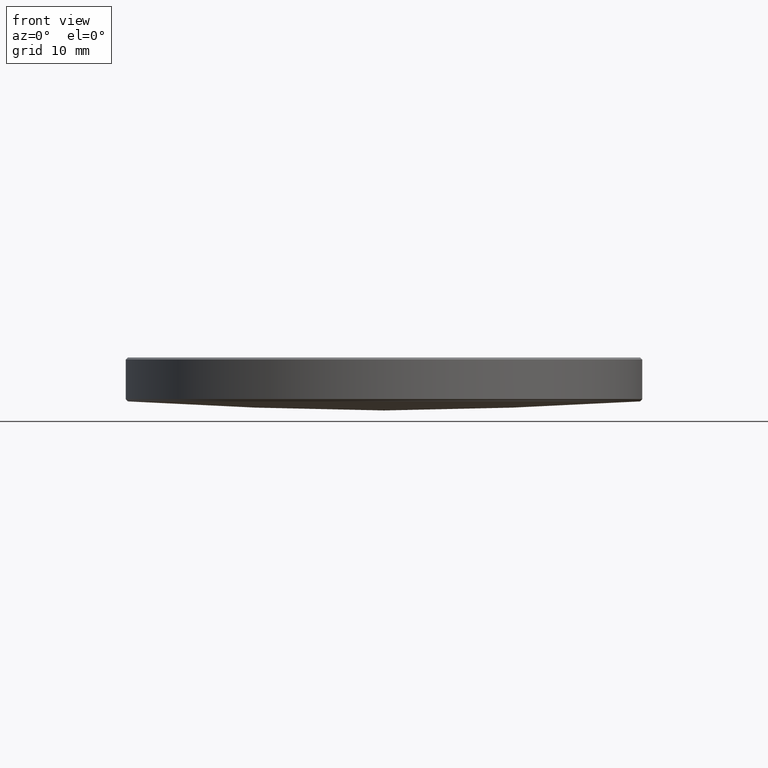
[diagram: clean part render]
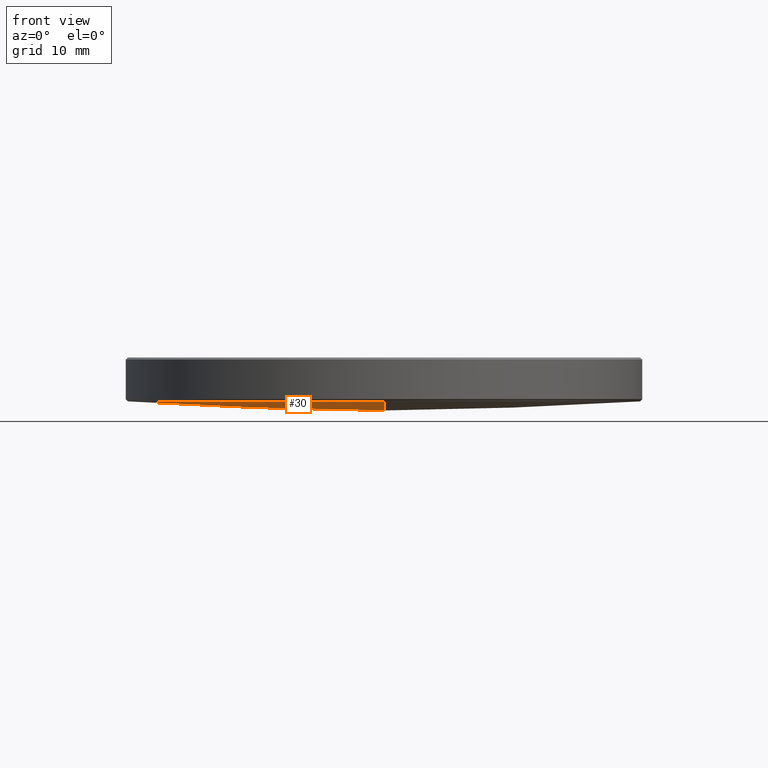
[diagram: same view with one face highlighted and labeled with its STEP entity id]
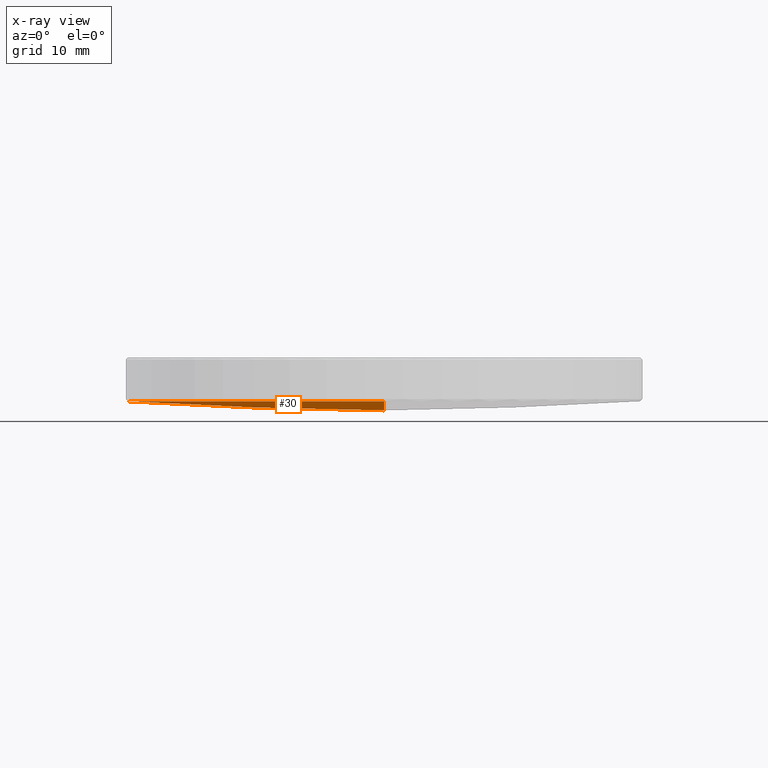
[diagram: x-ray of the same camera — body ghosted, the highlighted face saturated]
A machine part, front view. The second image highlights one B-rep face of the part: STEP entity #30.
The next image is the same camera in x-ray: the body ghosted, the highlighted face saturated — about 0% of this face is hidden behind the body in this view.
In plain terms, the highlighted spherical surface has radius 356.69 mm.
Its self-contained STEP definition (entity closure, byte-faithful):
#16 = EDGE_CURVE ( 'NONE', #221, #120, #324, .T. ) ;
#17 = ORIENTED_EDGE ( 'NONE', *, *, #188, .F. ) ;
#30 = ADVANCED_FACE ( 'NONE', ( #276 ), #244, .T. ) ;
#41 = VERTEX_POINT ( 'NONE', #202 ) ;
#45 = CARTESIAN_POINT ( 'NONE',  ( 0.000000000000000000, 0.000000000000000000, 12.98581782909002946 ) ) ;
#64 = ORIENTED_EDGE ( 'NONE', *, *, #16, .T. ) ;
#65 = AXIS2_PLACEMENT_3D ( 'NONE', #304, #271, #150 ) ;
#67 = ORIENTED_EDGE ( 'NONE', *, *, #295, .T. ) ;
#73 = DIRECTION ( 'NONE',  ( -1.000000000000000000, 1.224646799147353207E-16, 0.000000000000000000 ) ) ;
#93 = DIRECTION ( 'NONE',  ( 1.000000000000000000, 0.000000000000000000, 0.000000000000000000 ) ) ;
#104 = DIRECTION ( 'NONE',  ( 0.000000000000000000, 0.000000000000000000, -1.000000000000000000 ) ) ;
#112 = VERTEX_POINT ( 'NONE', #149 ) ;
#113 = DIRECTION ( 'NONE',  ( 0.000000000000000000, 0.000000000000000000, -1.000000000000000000 ) ) ;
#120 = VERTEX_POINT ( 'NONE', #301 ) ;
#136 = CIRCLE ( 'NONE', #310, 25.20055964190958520 ) ;
#145 = AXIS2_PLACEMENT_3D ( 'NONE', #45, #194, #296 ) ;
#146 = ORIENTED_EDGE ( 'NONE', *, *, #278, .T. ) ;
#149 = CARTESIAN_POINT ( 'NONE',  ( 0.000000000000000000, 25.20055964190926545, 12.98581782909005788 ) ) ;
#150 = DIRECTION ( 'NONE',  ( 0.000000000000000000, 1.000000000000000000, 0.000000000000000000 ) ) ;
#181 = AXIS2_PLACEMENT_3D ( 'NONE', #182, #73, #224 ) ;
#182 = CARTESIAN_POINT ( 'NONE',  ( 0.000000000000000000, 0.000000000000000000, 368.7844798469995453 ) ) ;
#183 = CARTESIAN_POINT ( 'NONE',  ( 0.000000000000000000, 0.000000000000000000, 368.7844798469995453 ) ) ;
#188 = EDGE_CURVE ( 'NONE', #221, #112, #253, .T. ) ;
#194 = DIRECTION ( 'NONE',  ( 0.000000000000000000, 0.000000000000000000, -1.000000000000000000 ) ) ;
#201 = CARTESIAN_POINT ( 'NONE',  ( 0.000000000000000000, 2.184096333939347168E-14, 12.09447984699951739 ) ) ;
#202 = CARTESIAN_POINT ( 'NONE',  ( -25.20055964190958520, 3.098390670026466009E-15, 12.98581782909002946 ) ) ;
#221 = VERTEX_POINT ( 'NONE', #201 ) ;
#224 = DIRECTION ( 'NONE',  ( -1.224646799147353207E-16, -1.000000000000000000, 0.000000000000000000 ) ) ;
#244 = SPHERICAL_SURFACE ( 'NONE', #65, 356.6899999999999977 ) ;
#245 = DIRECTION ( 'NONE',  ( 1.000000000000000000, -0.000000000000000000, 0.000000000000000000 ) ) ;
#253 = CIRCLE ( 'NONE', #275, 356.6899999999999977 ) ;
#257 = CIRCLE ( 'NONE', #145, 25.20055964190958520 ) ;
#271 = DIRECTION ( 'NONE',  ( -1.000000000000000000, 0.000000000000000000, 0.000000000000000000 ) ) ;
#275 = AXIS2_PLACEMENT_3D ( 'NONE', #183, #245, #104 ) ;
#276 = FACE_OUTER_BOUND ( 'NONE', #290, .T. ) ;
#278 = EDGE_CURVE ( 'NONE', #41, #112, #257, .T. ) ;
#290 = EDGE_LOOP ( 'NONE', ( #17, #64, #67, #146 ) ) ;
#295 = EDGE_CURVE ( 'NONE', #120, #41, #136, .T. ) ;
#296 = DIRECTION ( 'NONE',  ( 1.000000000000000000, 0.000000000000000000, 0.000000000000000000 ) ) ;
#301 = CARTESIAN_POINT ( 'NONE',  ( -3.086178470218615315E-15, -25.20055964190926545, 12.98581782909005788 ) ) ;
#304 = CARTESIAN_POINT ( 'NONE',  ( 0.000000000000000000, 0.000000000000000000, 368.7844798469995453 ) ) ;
#310 = AXIS2_PLACEMENT_3D ( 'NONE', #321, #113, #93 ) ;
#321 = CARTESIAN_POINT ( 'NONE',  ( 0.000000000000000000, 0.000000000000000000, 12.98581782909002946 ) ) ;
#324 = CIRCLE ( 'NONE', #181, 356.6899999999999977 ) ;